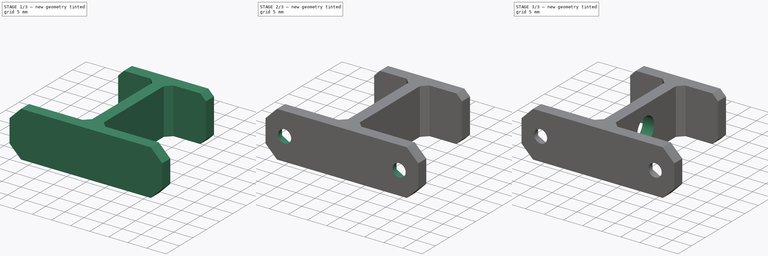
[diagram: build sequence overview — one tinted view per stage of 3, left to right]
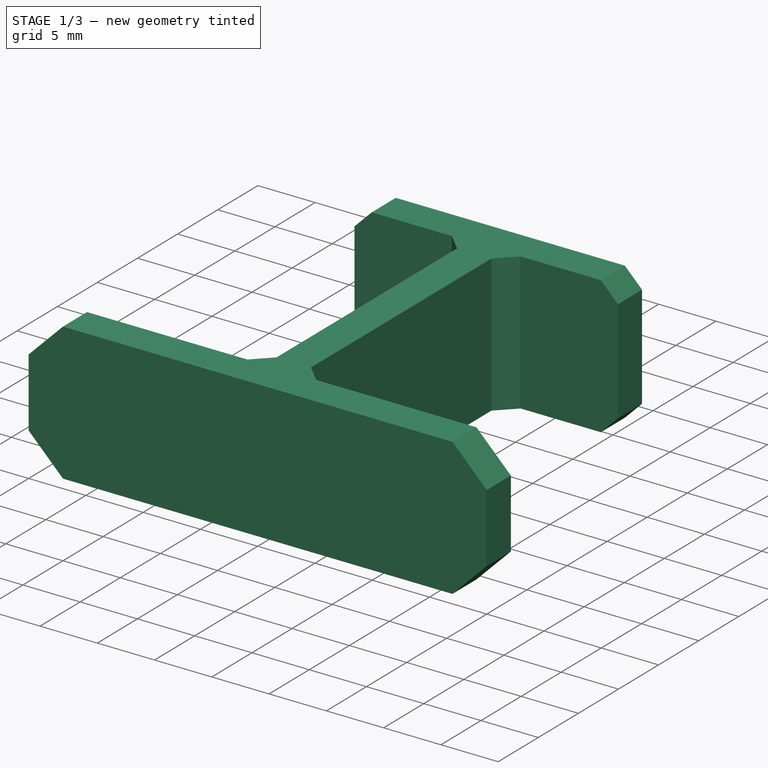
[diagram: stage 1 of 3 — iso view after this stage's code; geometry added in this stage tinted green]
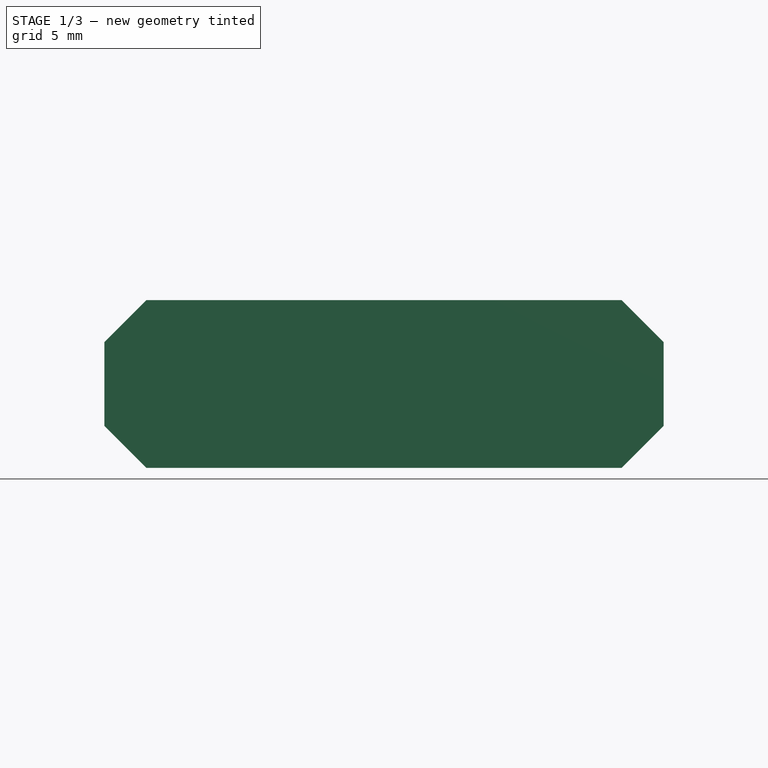
[diagram: stage 1 of 3 — front view after this stage's code; geometry added in this stage tinted green]
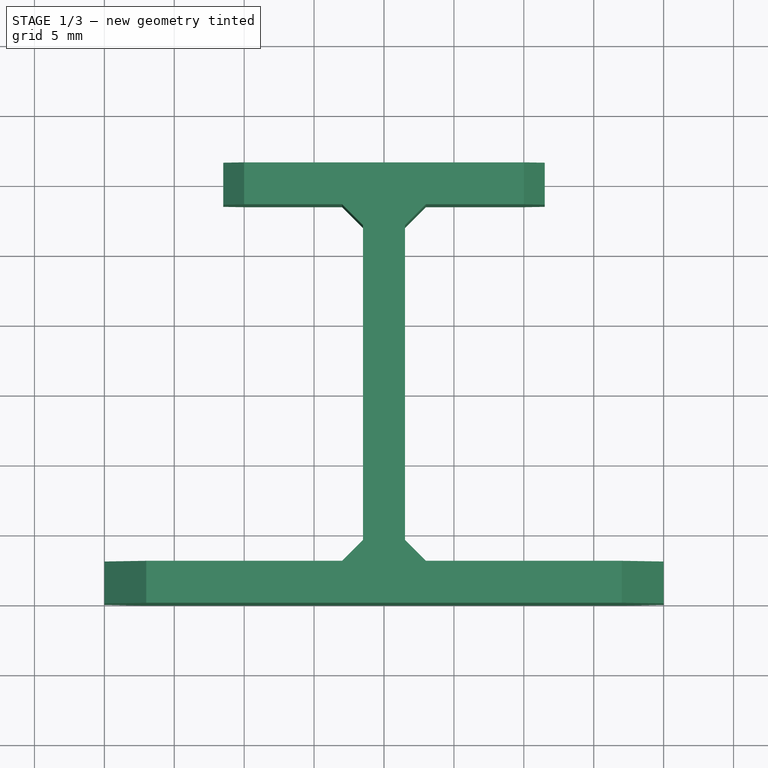
[diagram: stage 1 of 3 — top view after this stage's code; geometry added in this stage tinted green]
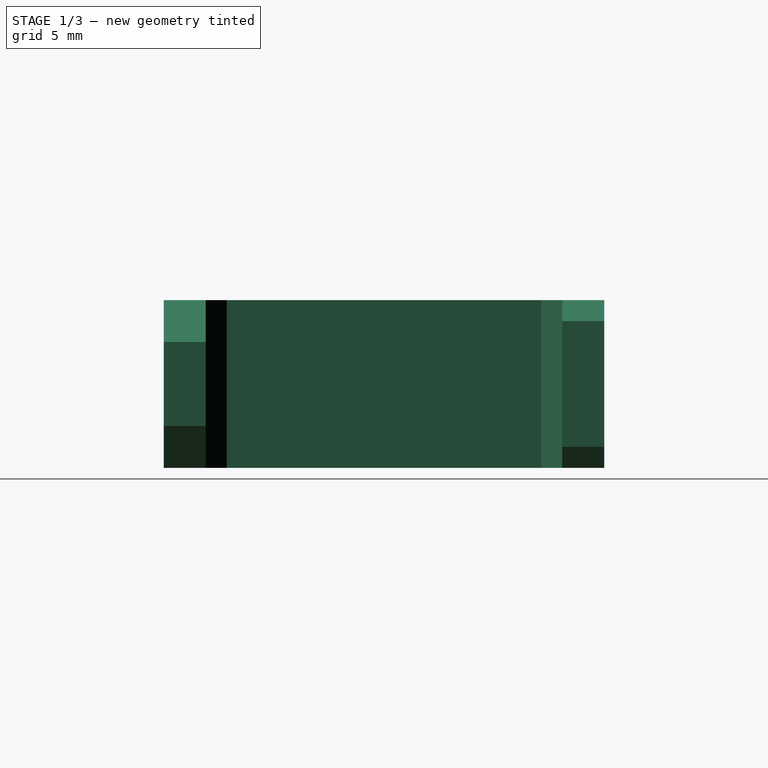
[diagram: stage 1 of 3 — right view after this stage's code; geometry added in this stage tinted green]
FCSTD DOCUMENT  (FreeCAD 0.20R29410 (Git))
Label: y-coupler-bracket
License: All rights reserved
LicenseURL: http://en.wikipedia.org/wiki/All_rights_reserved
objects: PartDesign::Pocket×5, Sketcher::SketchObject×4, PartDesign::Plane×3, PartDesign::Chamfer×2, Part::Part2DObjectPython×2, PartDesign::Pad×1, PartDesign::Body×1
note: 26 computed .brp shape members not serialized (recipe doc carries the construction recipe); baked Part::Feature solids carry a one-line shape summary decoded from their .brp

FEATURE [Sketcher::SketchObject] Sketch
  FullyConstrained = true
  MapMode = 5
  Support = -> [XY_Plane]
  sketch-geometry (14):
    g0: LineSegment StartX=-11.5 StartY=31.5 StartZ=0 EndX=11.5 EndY=31.5 EndZ=0
    g1: LineSegment StartX=11.5 StartY=31.5 StartZ=0 EndX=11.5 EndY=28.5 EndZ=0
    g2: LineSegment StartX=11.5 StartY=28.5 StartZ=0 EndX=1.5 EndY=28.5 EndZ=0
    g3: LineSegment StartX=-11.5 StartY=28.5 StartZ=0 EndX=-11.5 EndY=31.5 EndZ=0
    g4: LineSegment StartX=-20 StartY=3 StartZ=0 EndX=-1.5 EndY=3 EndZ=0
    g5: LineSegment StartX=20 StartY=3 StartZ=0 EndX=20 EndY=0 EndZ=0
    g6: LineSegment StartX=20 StartY=0 StartZ=0 EndX=-20 EndY=0 EndZ=0
    g7: LineSegment StartX=-20 StartY=0 StartZ=0 EndX=-20 EndY=3 EndZ=0
    g8: LineSegment StartX=-1.5 StartY=28.5 StartZ=0 EndX=1.5 EndY=28.5 EndZ=0
    g9: LineSegment StartX=1.5 StartY=28.5 StartZ=0 EndX=1.5 EndY=3 EndZ=0
    g10: LineSegment StartX=1.5 StartY=3 StartZ=0 EndX=-1.5 EndY=3 EndZ=0
    g11: LineSegment StartX=-1.5 StartY=3 StartZ=0 EndX=-1.5 EndY=28.5 EndZ=0
    g12: LineSegment StartX=1.5 StartY=3 StartZ=0 EndX=20 EndY=3 EndZ=0
    g13: LineSegment StartX=-1.5 StartY=28.5 StartZ=0 EndX=-11.5 EndY=28.5 EndZ=0
  constraints (38):
    c: Coincident(g0,g1)
    c: Coincident(g1,g2)
    c: Coincident(g13,g3)
    c: Coincident(g3,g0)
    c: Horizontal(g0)
    c: Horizontal(g2)
    c: Vertical(g1)
    c: Vertical(g3)
    c: Coincident(g12,g5)
    c: Coincident(g5,g6)
    c: Coincident(g6,g7)
    c: Coincident(g7,g4)
    c: Horizontal(g4)
    c: Horizontal(g6)
    c: Vertical(g5)
    c: Vertical(g7)
    c: Coincident(g8,g9)
    c: Coincident(g9,g10)
    c: Coincident(g10,g11)
    c: Coincident(g11,g8)
    c: Horizontal(g8)
    c: Vertical(g9)
    c: Vertical(g11)
    c: Symmetric(g6,g6,g-1)
    c: Equal(g10,g7)
    c: Coincident(g12,g9)
    c: Coincident(g13,g8)
    c: Coincident(g8,g2)
    c: Horizontal(g12)
    c: Coincident(g4,g10)
    c: Equal(g1,g5)
    c: Symmetric(g10,g10,g-2)
    c: Symmetric(g3,g1,g-2)
    c: DistanceX(g10,g10) = 3
    c: DistanceX(g6,g6) = 40
    c: DistanceY(g11,g11) = 25.5
    c: DistanceX(g3,g8) = 10
    c: DistanceX(g0,g0) = 23
FEATURE [PartDesign::Pad] Pad
  Direction = (0,0,1)
  Length = 12
  Length2 = 10
  Profile = -> Sketch
  ReferenceAxis = -> Sketch [N_Axis]
  Type = 0
FEATURE [PartDesign::Chamfer] Chamfer
  Angle = 45
  Base = -> Pad [Edge19,Edge18,Edge25,Edge24]
  BaseFeature = -> Pad
  ChamferType = 0
  FlipDirection = false
  Size = 3
  Size2 = 1
  SupportTransform = false
  UseAllEdges = false
FEATURE [PartDesign::Chamfer] Chamfer001
  Angle = 45
  Base = -> Chamfer [Edge32,Edge28,Edge18,Edge22,Edge44,Edge6,Edge34,Edge46]
  BaseFeature = -> Chamfer
  ChamferType = 0
  FlipDirection = false
  Size = 1.5
  Size2 = 1
  SupportTransform = false
  UseAllEdges = false
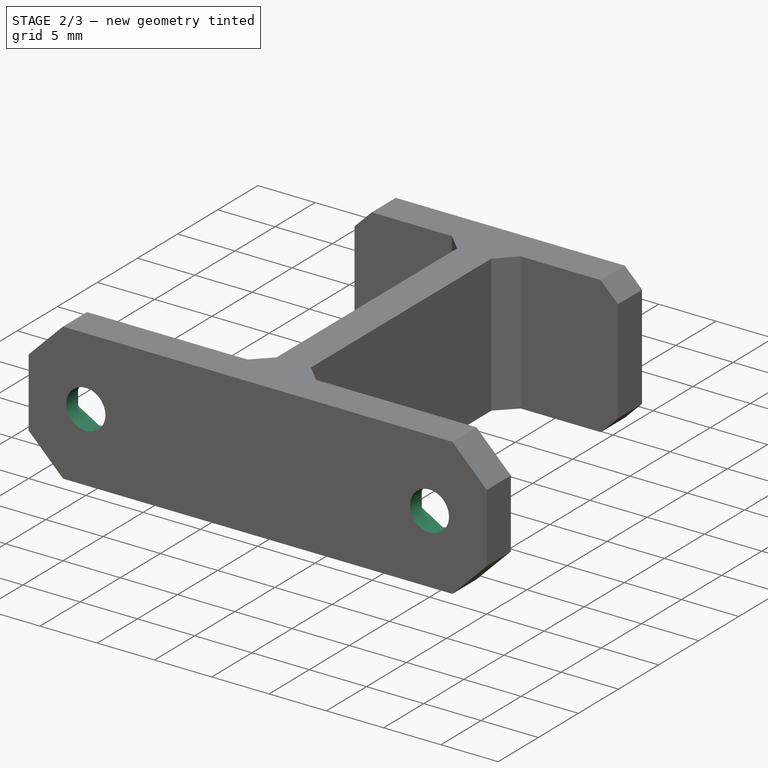
[diagram: stage 2 of 3 — iso view after this stage's code; geometry added in this stage tinted green]
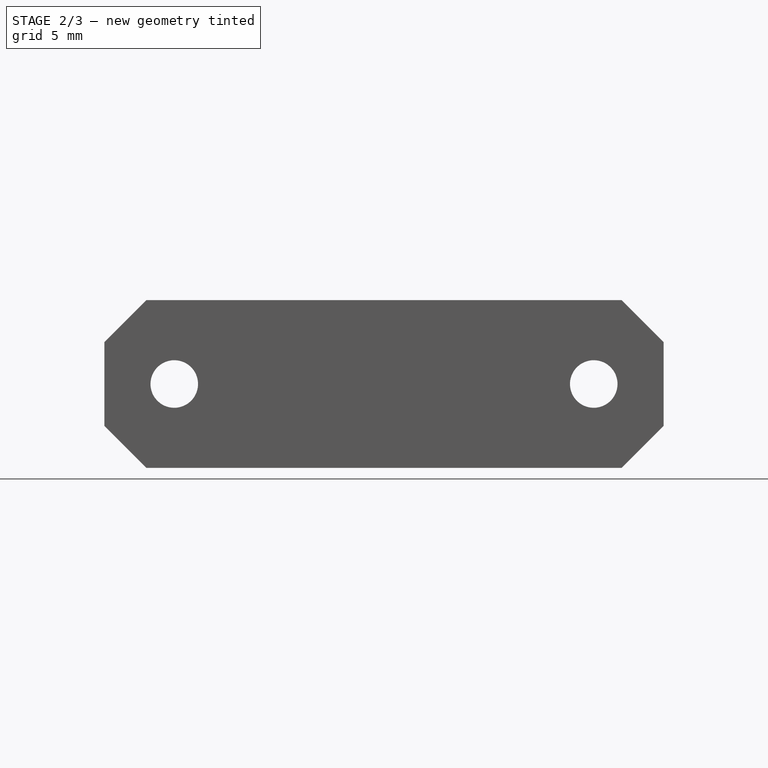
[diagram: stage 2 of 3 — front view after this stage's code; geometry added in this stage tinted green]
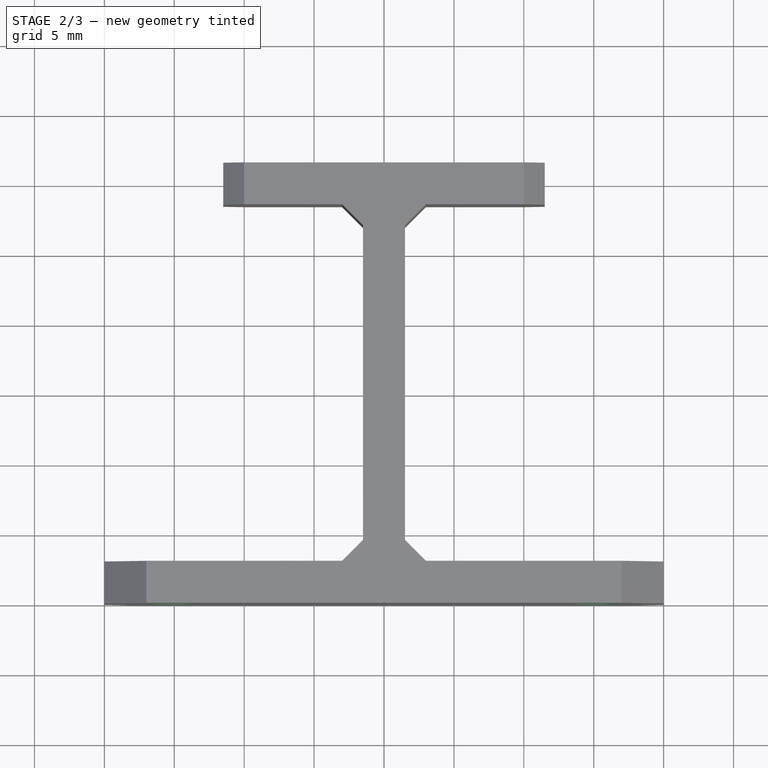
[diagram: stage 2 of 3 — top view after this stage's code; geometry added in this stage tinted green]
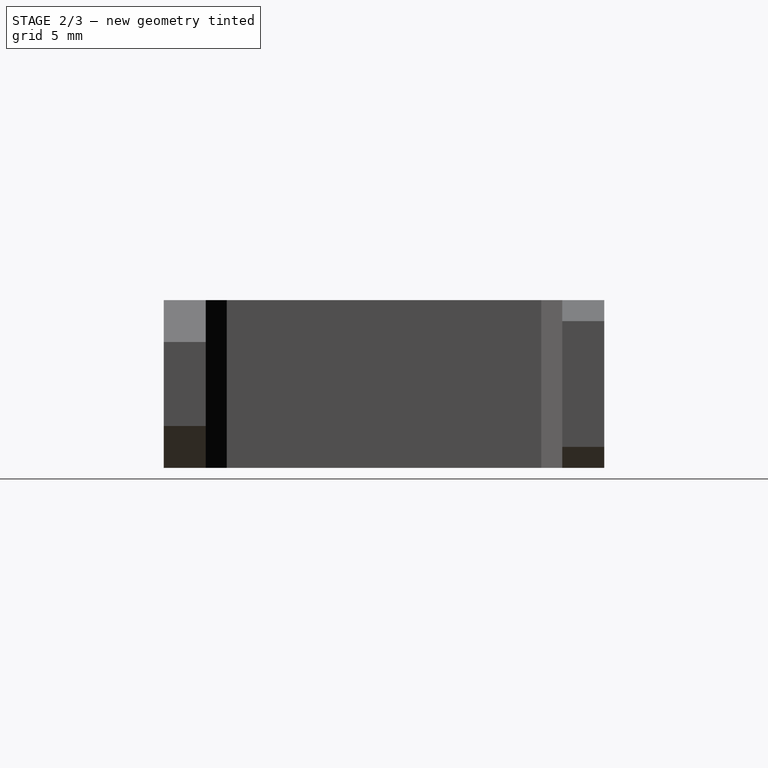
[diagram: stage 2 of 3 — right view after this stage's code; geometry added in this stage tinted green]
FEATURE [PartDesign::Plane] DatumPlane
  Length = 60
  MapMode = 5
  Placement = pos=(0,0,0) rot=(1,0,0;1.5708rad)
  ResizeMode = 0
  Support = -> [Chamfer001]
  Width = 60
FEATURE [Sketcher::SketchObject] Sketch001
  FullyConstrained = true
  MapMode = 5
  Placement = pos=(0,0,0) rot=(1,0,0;1.5708rad)
  Support = -> [DatumPlane]
  sketch-geometry (3):
    g0: Circle CenterX=-15 CenterY=6 CenterZ=0 NormalX=0 NormalY=0 NormalZ=1 AngleXU=0 Radius=1.7
    g1: Circle CenterX=15 CenterY=6 CenterZ=0 NormalX=0 NormalY=0 NormalZ=1 AngleXU=0 Radius=1.7
    g2: Circle CenterX=0 CenterY=6 CenterZ=0 NormalX=0 NormalY=0 NormalZ=1 AngleXU=0 Radius=1.7
  constraints (8):
    c: DistanceY(g-1,g0) = 6
    c: Equal(g1,g0)
    c: DistanceX(g0,g1) = 30
    c: Diameter(g0) = 3.4
    c: Symmetric(g0,g1,g-2)
    c: PointOnObject(g2,g-2)
    c: Equal(g2,g0)
    c: Horizontal(g2,g1)
FEATURE [PartDesign::Pocket] Pocket  label="bracket bolt down holes"
  BaseFeature = -> Chamfer001
  Direction = (0,1,-2e-16)
  Length = 7
  Length2 = 5
  Profile = -> Sketch001
  ReferenceAxis = -> Sketch001 [N_Axis]
  Type = 0
  expr: Length = 7
FEATURE [PartDesign::Plane] DatumPlane001
  Length = 60
  MapMode = 5
  Placement = pos=(0,3,0) rot=(0,0.707107,0.707107;3.14159rad)
  ResizeMode = 0
  Support = -> [Pocket]
  Width = 60
FEATURE [Sketcher::SketchObject] Sketch002
  ExternalGeometry = -> [Pocket]
  FullyConstrained = true
  MapMode = 5
  Placement = pos=(0,3,0) rot=(0,0.707107,0.707107;3.14159rad)
  Support = -> [DatumPlane001]
  sketch-geometry (15):
    g0: LineSegment StartX=15 StartY=9.20429 StartZ=0 EndX=12.225 EndY=7.60215 EndZ=0
    g1: LineSegment StartX=12.225 StartY=7.60215 StartZ=0 EndX=12.225 EndY=4.39785 EndZ=0
    g2: LineSegment StartX=12.225 StartY=4.39785 StartZ=0 EndX=15 EndY=2.79571 EndZ=0
    g3: LineSegment StartX=15 StartY=2.79571 StartZ=0 EndX=17.775 EndY=4.39785 EndZ=0
    g4: LineSegment StartX=17.775 StartY=4.39785 StartZ=0 EndX=17.775 EndY=7.60215 EndZ=0
    g5: LineSegment StartX=17.775 StartY=7.60215 StartZ=0 EndX=15 EndY=9.20429 EndZ=0
    g6: Circle CenterX=15 CenterY=6 CenterZ=0 NormalX=0 NormalY=0 NormalZ=1 AngleXU=0 Radius=3.20429
    g7: LineSegment StartX=-12.225 StartY=7.60215 StartZ=0 EndX=-15 EndY=9.20429 EndZ=0
    g8: LineSegment StartX=-15 StartY=9.20429 StartZ=0 EndX=-17.775 EndY=7.60215 EndZ=0
    g9: LineSegment StartX=-17.775 StartY=7.60215 StartZ=0 EndX=-17.775 EndY=4.39785 EndZ=0
    g10: LineSegment StartX=-17.775 StartY=4.39785 StartZ=0 EndX=-15 EndY=2.79571 EndZ=0
    g11: LineSegment StartX=-15 StartY=2.79571 StartZ=0 EndX=-12.225 EndY=4.39785 EndZ=0
    g12: LineSegment StartX=-12.225 StartY=4.39785 StartZ=0 EndX=-12.225 EndY=7.60215 EndZ=0
    g13: Circle CenterX=-15 CenterY=6 CenterZ=0 NormalX=0 NormalY=0 NormalZ=1 AngleXU=0 Radius=3.20429
    g14: LineSegment StartX=-15 StartY=6 StartZ=0 EndX=15 EndY=6 EndZ=0
  constraints (36):
    c: Coincident(g0,g1)
    c: Coincident(g1,g2)
    c: Coincident(g2,g3)
    c: Coincident(g3,g4)
    c: Coincident(g4,g5)
    c: Coincident(g5,g0)
    c: Equal(g0, g1-g5) x5
    c: PointOnObject(g0,g6)
    c: PointOnObject(g1,g6)
    c: PointOnObject(g2,g6)
    c: PointOnObject(g3,g6)
    c: PointOnObject(g4,g6)
    c: PointOnObject(g5,g6)
    c: Coincident(g6,g-3)
    c: Coincident(g7,g8)
    c: Coincident(g8,g9)
    c: Coincident(g9,g10)
    c: Coincident(g10,g11)
    c: Coincident(g11,g12)
    c: Coincident(g12,g7)
    c: Equal(g7, g8-g12) x5
    c: PointOnObject(g7,g13)
    c: PointOnObject(g8,g13)
    c: PointOnObject(g9,g13)
    c: PointOnObject(g10,g13)
    c: PointOnObject(g11,g13)
    c: PointOnObject(g12,g13)
    c: Coincident(g13,g-4)
    c: Equal(g13,g6)
    c: Coincident(g14,g13)
    c: Horizontal(g14)
    c: Coincident(g6,g14)
    c: DistanceX(g14,g14) = 30
    c: Distance(g10,g8) = 5.55
    c: Vertical(g12)
    c: Vertical(g4)
FEATURE [PartDesign::Pocket] Pocket001  label="Hex Nut Pocket"
  BaseFeature = -> Pocket
  Direction = (0,-1,2e-16)
  Length = 1.75
  Length2 = 5
  Profile = -> Sketch002
  ReferenceAxis = -> Sketch002 [N_Axis]
  Type = 0
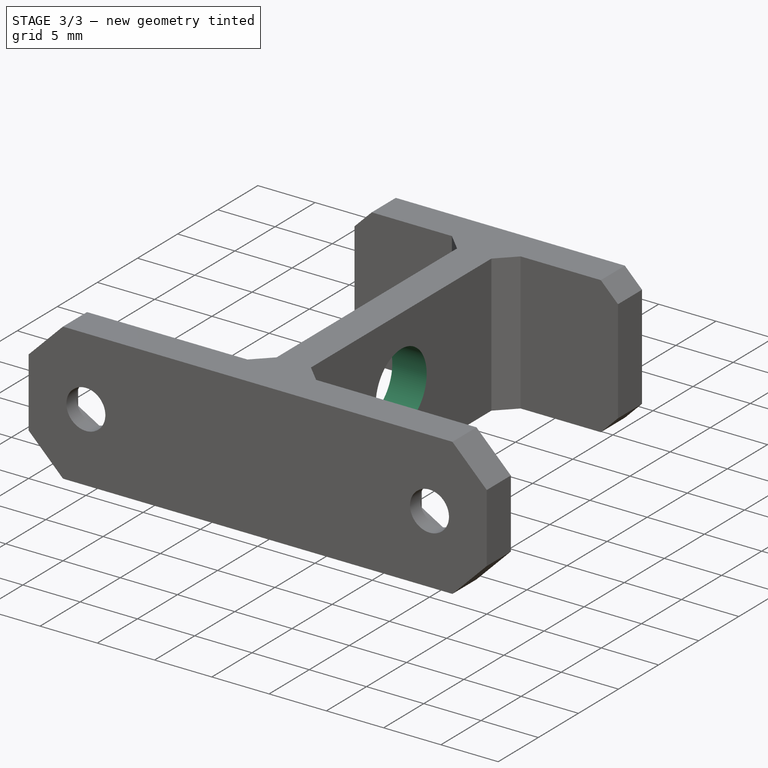
[diagram: stage 3 of 3 — iso view after this stage's code; geometry added in this stage tinted green]
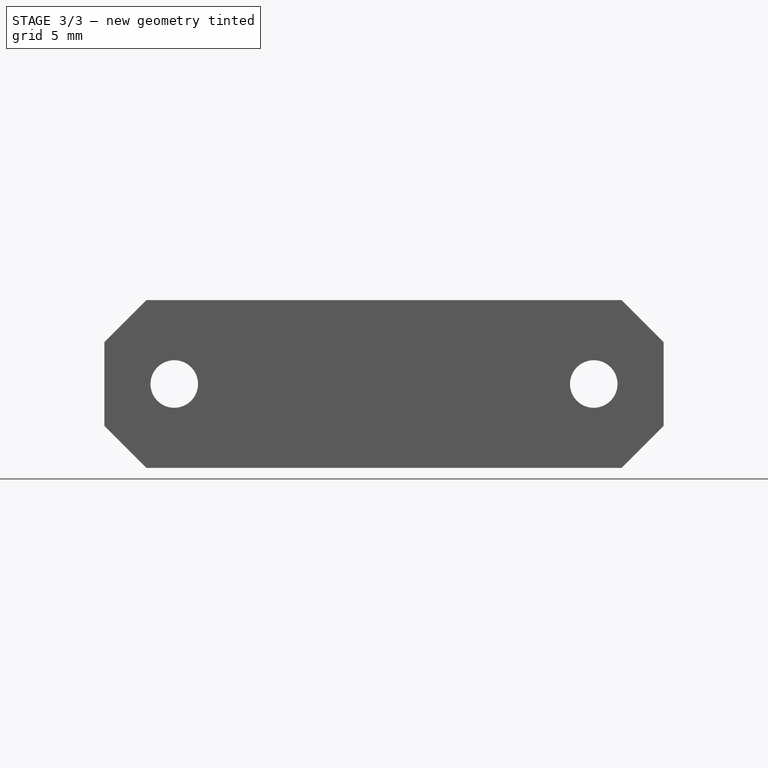
[diagram: stage 3 of 3 — front view after this stage's code; geometry added in this stage tinted green]
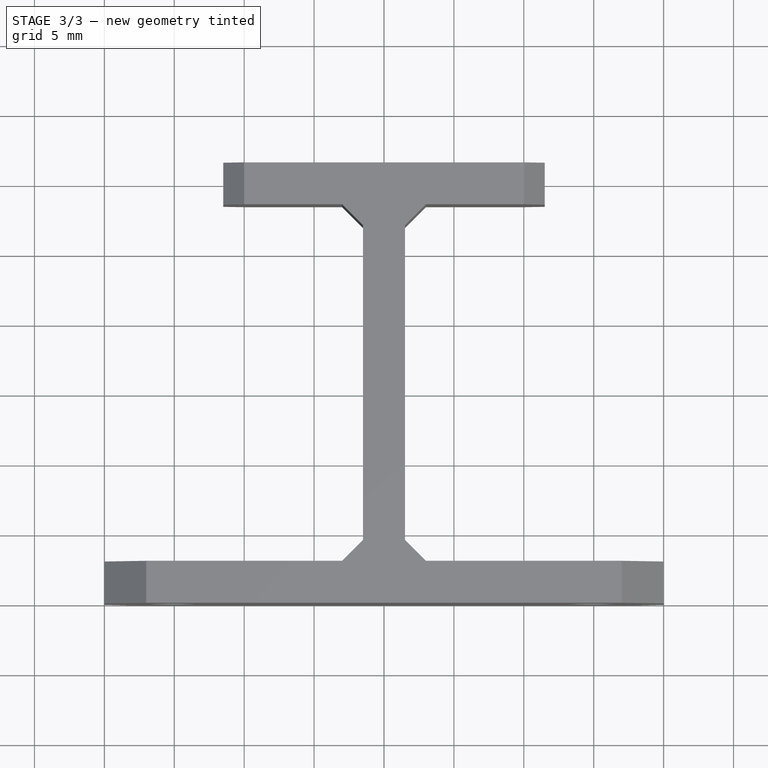
[diagram: stage 3 of 3 — top view after this stage's code; geometry added in this stage tinted green]
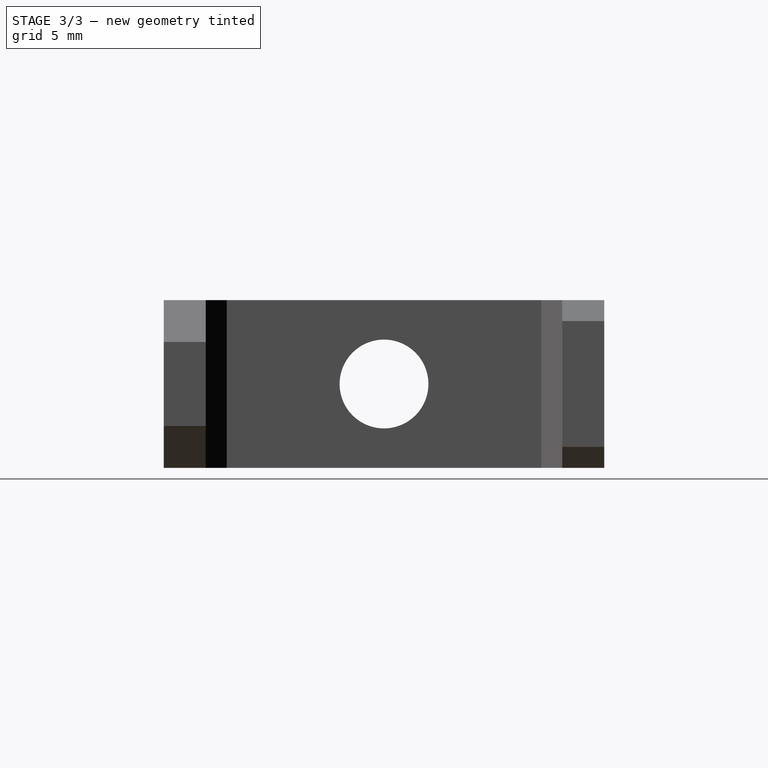
[diagram: stage 3 of 3 — right view after this stage's code; geometry added in this stage tinted green]
FEATURE [Sketcher::SketchObject] Sketch003  label="coupler bolting point"
  ExternalGeometry = -> [Pocket001]
  FullyConstrained = false
  MapMode = 5
  Placement = pos=(0,0,0) rot=(0.57735,0.57735,0.57735;2.0944rad)
  Support = -> [YZ_Plane]
  sketch-geometry (15):
    g0: Circle CenterX=15.75 CenterY=6 CenterZ=0 NormalX=0 NormalY=0 NormalZ=1 AngleXU=0 Radius=3.175
    g1: LineSegment StartX=6.4 StartY=4.25 StartZ=0 EndX=4 EndY=4.25 EndZ=0
    g2: LineSegment StartX=4 StartY=4.25 StartZ=0 EndX=4 EndY=9.75 EndZ=0
    g3: LineSegment StartX=4 StartY=9.75 StartZ=0 EndX=6.4 EndY=9.75 EndZ=0
    g4: LineSegment StartX=6.4 StartY=9.75 StartZ=0 EndX=6.4 EndY=4.25 EndZ=0
    g5: GeomPoint X=4 Y=7 Z=0
    g6: LineSegment StartX=7 StartY=5.83066 StartZ=0 EndX=-3 EndY=5.83066 EndZ=0
    g7: LineSegment StartX=-3 StartY=5.83066 StartZ=0 EndX=-3 EndY=8.27007 EndZ=0
    g8: LineSegment StartX=-3 StartY=8.27007 StartZ=0 EndX=7 EndY=8.27007 EndZ=0
    g9: LineSegment StartX=7 StartY=8.27007 StartZ=0 EndX=7 EndY=5.83066 EndZ=0
    g10: LineSegment StartX=-4.97001 StartY=10.0832 StartZ=0 EndX=-3 EndY=10.0832 EndZ=0
    g11: LineSegment StartX=-3 StartY=10.0832 StartZ=0 EndX=-3 EndY=3.10662 EndZ=0
    g12: LineSegment StartX=-3 StartY=3.10662 StartZ=0 EndX=-4.97001 EndY=3.10662 EndZ=0
    g13: LineSegment StartX=-4.97001 StartY=3.10662 StartZ=0 EndX=-4.97001 EndY=10.0832 EndZ=0
    g14: GeomPoint X=15.75 Y=12 Z=0
  constraints (37):
    c: Diameter(g0) = 6.35
    c: DistanceY(g-1,g0) = 6
    c: Coincident(g1,g2)
    c: Coincident(g2,g3)
    c: Coincident(g3,g4)
    c: Coincident(g4,g1)
    c: Horizontal(g1)
    c: Horizontal(g3)
    c: Vertical(g2)
    c: Vertical(g4)
    c: Symmetric(g2,g2,g5)
    c: DistanceY(g-1,g5) = 7
    c: DistanceY(g4,g4) = 5.5
    c: DistanceX(g3,g3) = 2.4
    c: Coincident(g6,g7)
    c: Coincident(g7,g8)
    c: Coincident(g8,g9)
    c: Coincident(g9,g6)
    c: Horizontal(g6)
    c: Horizontal(g8)
    c: Vertical(g7)
    c: Vertical(g9)
    c: Coincident(g10,g11)
    c: Coincident(g11,g12)
    c: Coincident(g12,g13)
    c: Coincident(g13,g10)
    c: Horizontal(g10)
    c: Horizontal(g12)
    c: Vertical(g11)
    c: Vertical(g13)
    c: PointOnObject(g6,g11)
    c: DistanceX(g11,g-1) = 3
    c: DistanceX(g6,g6) = 10
    c: DistanceX(g-1,g1) = 4
    c: Symmetric(g-3,g-3,g14)
    c: Vertical(g0,g14)
    c: DistanceX(g-1,g0) = 15.75
FEATURE [PartDesign::Pocket] Pocket002
  BaseFeature = -> Pocket001
  Direction = (-1,2e-16,-3e-16)
  Length = 5
  Length2 = 5
  Profile = -> Sketch003
  ReferenceAxis = -> Sketch003 [N_Axis]
  Type = 4
FEATURE [Part::Part2DObjectPython] ShapeString  label="LH Label"  # Draft 2D object (typed FeaturePython)
  FontFile = <userpath>/Github/index-machines/lumenpnp/lib/fonts/RobotoMono-VariableFont_weight.ttf
  MakeFace = true
  Placement = pos=(9.3,31.5,11.64) rot=(-0.57735,0.57735,0.57735;2.0944rad)
  Size = 8
  String = LH 
  Tracking = 0
FEATURE [Part::Part2DObjectPython] ShapeString001  label="RH Label"  # Draft 2D object (typed FeaturePython)
  FontFile = <userpath>/Github/index-machines/lumenpnp/lib/fonts/RobotoMono-VariableFont_weight.ttf
  MakeFace = true
  Placement = pos=(-3.15,31.5,11.59) rot=(0.57735,-0.57735,-0.57735;4.18879rad)
  Size = 8
  String = RH
  Tracking = 0
FEATURE [PartDesign::Pocket] Pocket003  label="LH Label001"
  BaseFeature = -> Pocket002
  Direction = (1e-16,-1,1e-16)
  Length = 0.4
  Length2 = 5
  Profile = -> ShapeString
  ReferenceAxis = -> ShapeString [N_Axis]
  Type = 0
FEATURE [PartDesign::Pocket] Pocket004  label="RH Label001"
  BaseFeature = -> Pocket003
  Direction = (0,-1,0)
  Length = 0.4
  Length2 = 5
  Profile = -> ShapeString001
  ReferenceAxis = -> ShapeString001 [N_Axis]
  Type = 0
FEATURE [PartDesign::Plane] DatumPlane002  label="PrintPlane"
  Length = 60.6301
  MapMode = 5
  Placement = pos=(0,0,12) rot=(0,0,1;0rad)
  ResizeMode = 0
  Support = -> [Pocket004]
  Width = 67.1301
FEATURE [PartDesign::Body] Body
  Group = -> [Sketch,Pad,Chamfer,Chamfer001,DatumPlane,Sketch001,Pocket,DatumPlane001,Sketch002,Pocket001,Sketch003,Pocket002,ShapeString,ShapeString001,Pocket003,Pocket004,DatumPlane002]
  Origin = -> Origin
  Tip = -> Pocket004
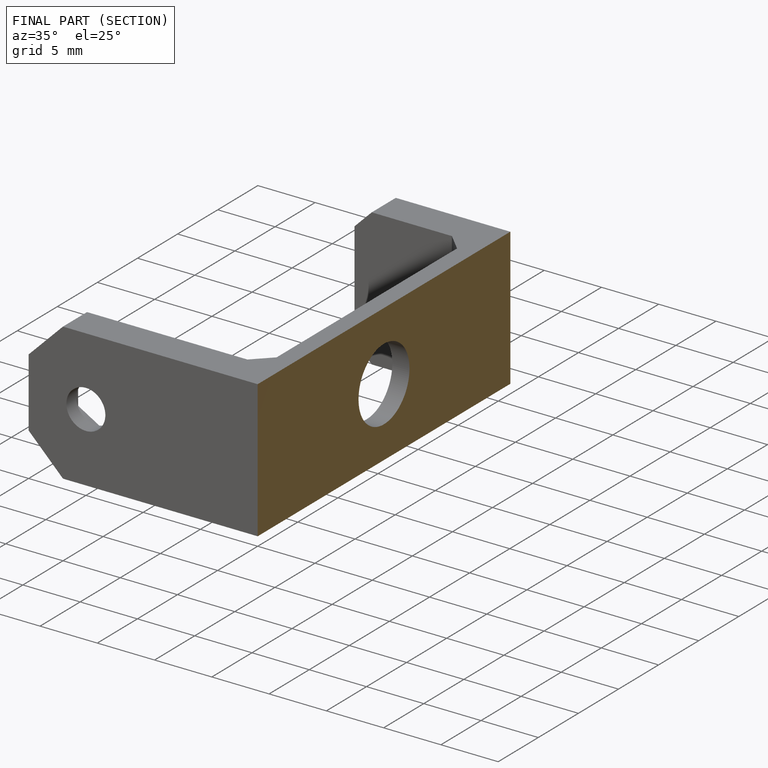
[diagram: finished part — half-section view (interior)]
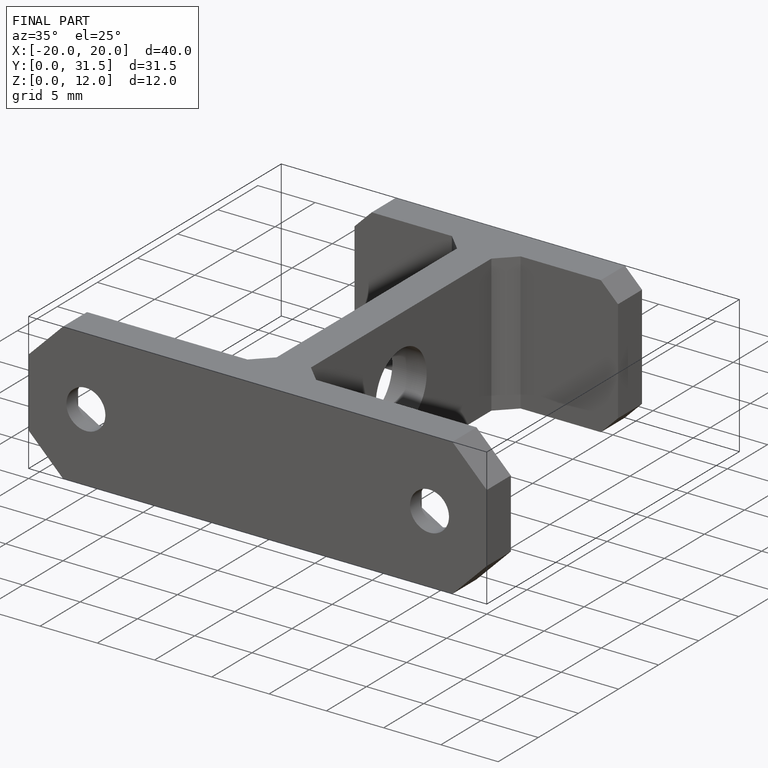
[diagram: finished part — iso view with bounding-box wireframe]
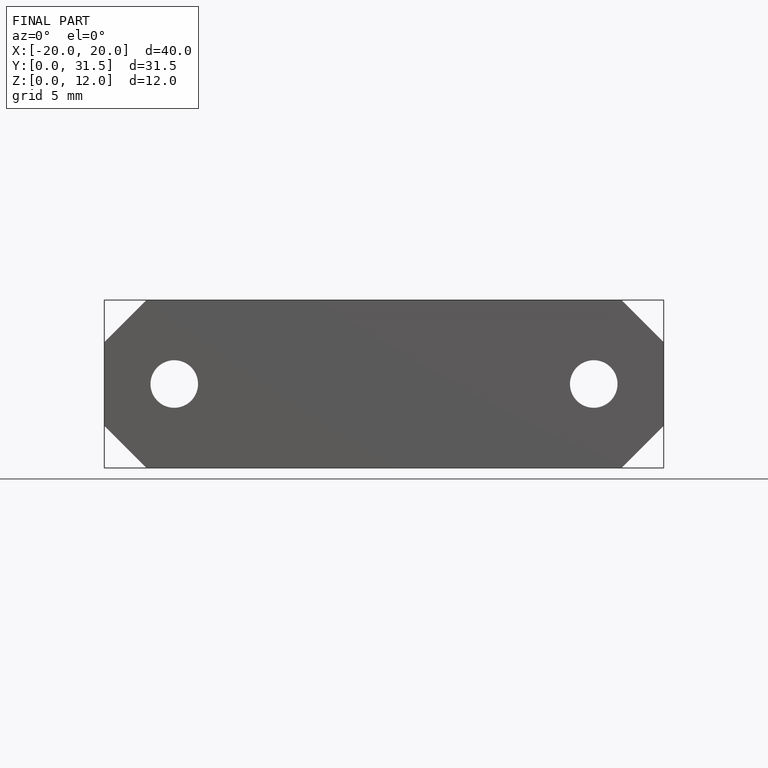
[diagram: finished part — front view with bounding-box wireframe]
